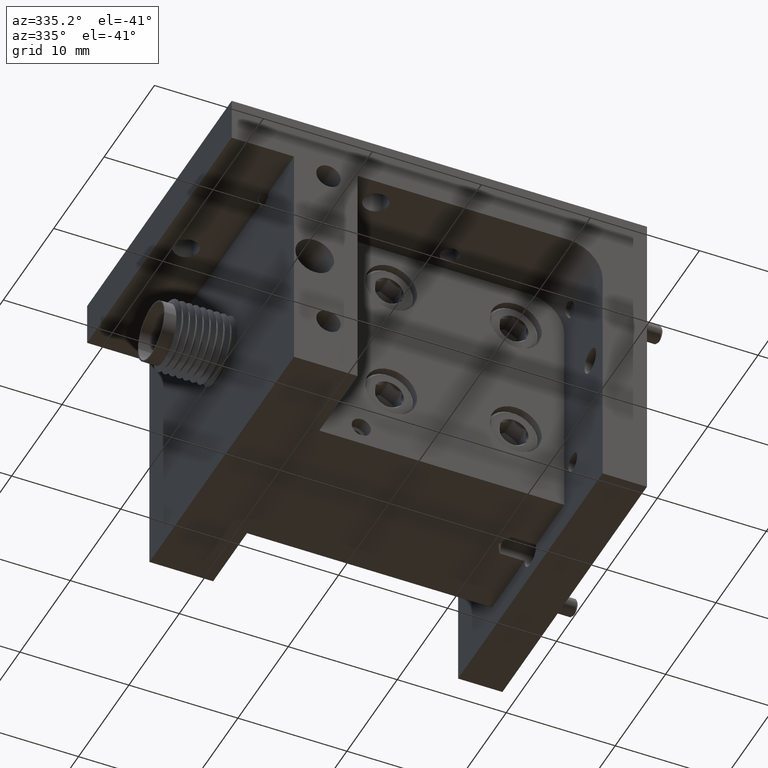
[diagram: clean part render]
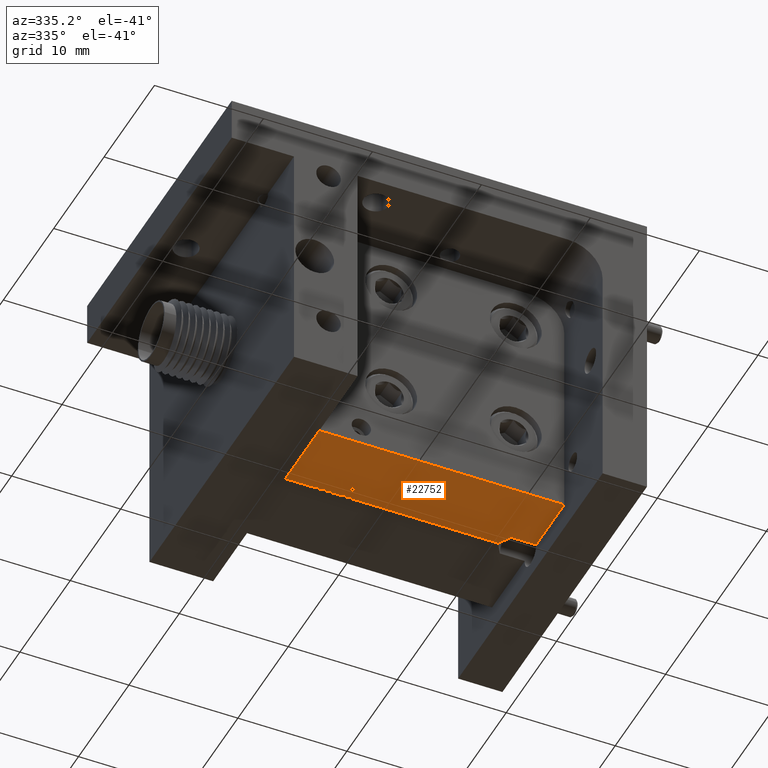
[diagram: same view with one face highlighted and labeled with its STEP entity id]
A machine part, auxiliary view. The second image highlights one B-rep face of the part: STEP entity #22752.
In plain terms, the highlighted planar face has unit normal (0, -0, 1).
Its self-contained STEP definition (entity closure, byte-faithful):
#73 = CARTESIAN_POINT ( 'NONE',  ( -0.2949999999999989900, 0.3000000000000000400, -0.4650000000000012500 ) ) ;
#123 = B_SPLINE_CURVE_WITH_KNOTS ( 'NONE', 3,
 ( #26936, #21716, #9721, #31648, #14305, #19356, #14627, #17192, #31438, #14720 ),
 .UNSPECIFIED., .F., .F.,
 ( 4, 2, 2, 2, 4 ),
 ( 0.0005249711144175140400, 0.0006856515773541338100, 0.0008463320402907535800, 0.001167692966163995100, 0.001810414817910482600 ),
 .UNSPECIFIED. ) ;
#1115 = CARTESIAN_POINT ( 'NONE',  ( -0.2949999999999989900, 0.5649999999999999500, -0.4650000000000012500 ) ) ;
#1230 = ORIENTED_EDGE ( 'NONE', *, *, #3225, .T. ) ;
#2124 = EDGE_CURVE ( 'NONE', #29636, #5963, #7842, .T. ) ;
#3225 = EDGE_CURVE ( 'NONE', #5963, #25840, #21975, .T. ) ;
#4137 = CARTESIAN_POINT ( 'NONE',  ( 0.5900000000000009700, 0.5649999999999999500, -0.4650000000000003600 ) ) ;
#5963 = VERTEX_POINT ( 'NONE', #12806 ) ;
#6051 = ORIENTED_EDGE ( 'NONE', *, *, #16603, .T. ) ;
#6650 = EDGE_LOOP ( 'NONE', ( #6051, #20218, #1230, #8365, #28783, #9430 ) ) ;
#6773 = VECTOR ( 'NONE', #26954, 39.37007874015748100 ) ;
#7545 = CARTESIAN_POINT ( 'NONE',  ( 0.5900000000000009700, 0.3000000000000000400, -0.4650000000000003600 ) ) ;
#7842 = LINE ( 'NONE', #21548, #12778 ) ;
#8365 = ORIENTED_EDGE ( 'NONE', *, *, #24287, .F. ) ;
#8943 = CARTESIAN_POINT ( 'NONE',  ( -0.2949999999999989900, 0.3000000000000000400, -0.4650000000000012500 ) ) ;
#9430 = ORIENTED_EDGE ( 'NONE', *, *, #18974, .F. ) ;
#9721 = CARTESIAN_POINT ( 'NONE',  ( 0.4765373437289721600, 0.5609176673636479000, -0.4650000000000004100 ) ) ;
#10532 = CARTESIAN_POINT ( 'NONE',  ( 0.4999999999999996700, 0.5206582871327685200, -0.4650000000000006900 ) ) ;
#10734 = VECTOR ( 'NONE', #18857, 39.37007874015748100 ) ;
#11492 = LINE ( 'NONE', #13896, #10734 ) ;
#12778 = VECTOR ( 'NONE', #14025, 39.37007874015748100 ) ;
#12806 = CARTESIAN_POINT ( 'NONE',  ( 0.5900000000000009700, 0.5206582871327687400, -0.4650000000000003600 ) ) ;
#13878 = DIRECTION ( 'NONE',  ( -1.000000000000000000, 1.387778780781147700E-017, 1.804112415015879400E-016 ) ) ;
#13896 = CARTESIAN_POINT ( 'NONE',  ( -0.2949999999999989900, 0.5649999999999999500, -0.4650000000000012500 ) ) ;
#14025 = DIRECTION ( 'NONE',  ( 1.000000000000000000, 9.067674934694163300E-031, 0.0000000000000000000 ) ) ;
#14135 = AXIS2_PLACEMENT_3D ( 'NONE', #25891, #18613, #13878 ) ;
#14305 = CARTESIAN_POINT ( 'NONE',  ( 0.4795022485639811000, 0.5552979478611861400, -0.4650000000000005200 ) ) ;
#14627 = CARTESIAN_POINT ( 'NONE',  ( 0.4848137973626852100, 0.5461338398789152800, -0.4650000000000004100 ) ) ;
#14720 = CARTESIAN_POINT ( 'NONE',  ( 0.4999999999999996700, 0.5206582871327685200, -0.4650000000000006900 ) ) ;
#15379 = VECTOR ( 'NONE', #21243, 39.37007874015748100 ) ;
#16603 = EDGE_CURVE ( 'NONE', #25229, #29636, #123, .T. ) ;
#16779 = FACE_OUTER_BOUND ( 'NONE', #6650, .T. ) ;
#17192 = CARTESIAN_POINT ( 'NONE',  ( 0.4912946019479287900, 0.5351993364345191100, -0.4650000000000003600 ) ) ;
#18120 = VECTOR ( 'NONE', #29199, 39.37007874015748100 ) ;
#18613 = DIRECTION ( 'NONE',  ( 1.804112415015879400E-016, -4.050170708694932800E-018, 1.000000000000000000 ) ) ;
#18857 = DIRECTION ( 'NONE',  ( -1.387778780781711000E-017, -1.000000000000000000, -4.050170708698059000E-018 ) ) ;
#18974 = EDGE_CURVE ( 'NONE', #25229, #24408, #26887, .T. ) ;
#19356 = CARTESIAN_POINT ( 'NONE',  ( 0.4826554937055353400, 0.5497800015107655600, -0.4650000000000005800 ) ) ;
#20218 = ORIENTED_EDGE ( 'NONE', *, *, #2124, .T. ) ;
#20288 = VERTEX_POINT ( 'NONE', #8943 ) ;
#21243 = DIRECTION ( 'NONE',  ( -1.000000000000000000, 1.387778780781147700E-017, 1.804112415015879400E-016 ) ) ;
#21525 = EDGE_CURVE ( 'NONE', #24408, #20288, #11492, .T. ) ;
#21548 = CARTESIAN_POINT ( 'NONE',  ( 0.7499999999999996700, 0.5206582871327687400, -0.4650000000000003600 ) ) ;
#21716 = CARTESIAN_POINT ( 'NONE',  ( 0.4755149297746260100, 0.5628979474788850000, -0.4650000000000001400 ) ) ;
#21975 = LINE ( 'NONE', #24609, #18120 ) ;
#22752 = ADVANCED_FACE ( 'NONE', ( #16779 ), #30909, .F. ) ;
#24287 = EDGE_CURVE ( 'NONE', #20288, #25840, #25145, .T. ) ;
#24408 = VERTEX_POINT ( 'NONE', #1115 ) ;
#24609 = CARTESIAN_POINT ( 'NONE',  ( 0.5900000000000009700, 0.5649999999999999500, -0.4650000000000003600 ) ) ;
#25145 = LINE ( 'NONE', #73, #6773 ) ;
#25229 = VERTEX_POINT ( 'NONE', #29355 ) ;
#25840 = VERTEX_POINT ( 'NONE', #7545 ) ;
#25891 = CARTESIAN_POINT ( 'NONE',  ( 0.5900000000000009700, 0.5649999999999999500, -0.4650000000000003600 ) ) ;
#26887 = LINE ( 'NONE', #4137, #15379 ) ;
#26936 = CARTESIAN_POINT ( 'NONE',  ( 0.4755149297746265000, 0.5649999999999999500, -0.4650000000000006900 ) ) ;
#26954 = DIRECTION ( 'NONE',  ( 1.000000000000000000, -1.387778780781147700E-017, -1.804112415015879400E-016 ) ) ;
#28783 = ORIENTED_EDGE ( 'NONE', *, *, #21525, .F. ) ;
#29199 = DIRECTION ( 'NONE',  ( -1.387778780781711000E-017, -1.000000000000000000, -4.050170708698059000E-018 ) ) ;
#29355 = CARTESIAN_POINT ( 'NONE',  ( 0.4755149297746265000, 0.5649999999999999500, -0.4650000000000006900 ) ) ;
#29636 = VERTEX_POINT ( 'NONE', #10532 ) ;
#30909 = PLANE ( 'NONE',  #14135 ) ;
#31438 = CARTESIAN_POINT ( 'NONE',  ( 0.4956470611798937100, 0.5279286546998148700, -0.4650000000000003000 ) ) ;
#31648 = CARTESIAN_POINT ( 'NONE',  ( 0.4784583121899312900, 0.5571422548493116800, -0.4650000000000003600 ) ) ;